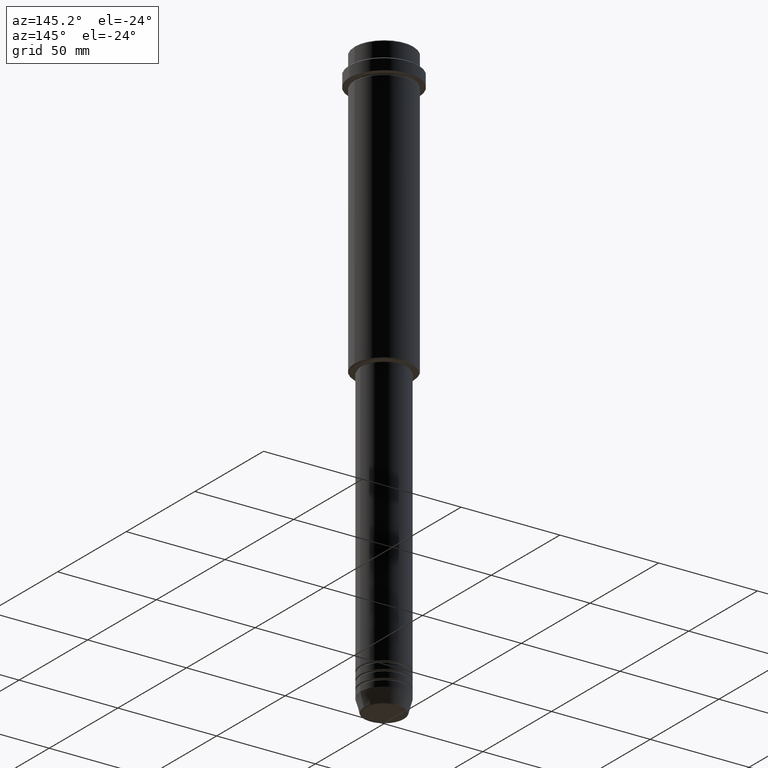
[diagram: clean part render]
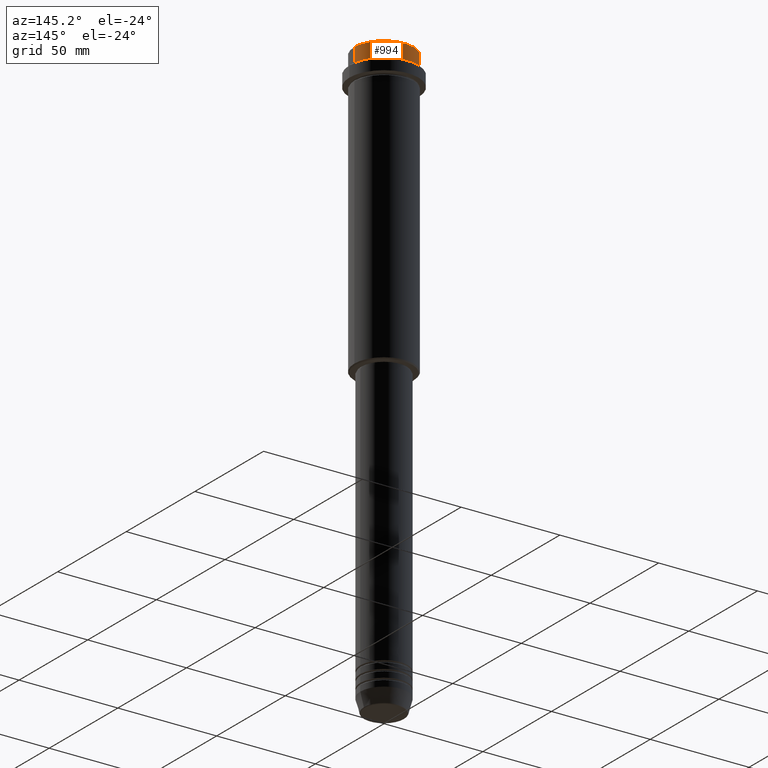
[diagram: same view with one face highlighted and labeled with its STEP entity id]
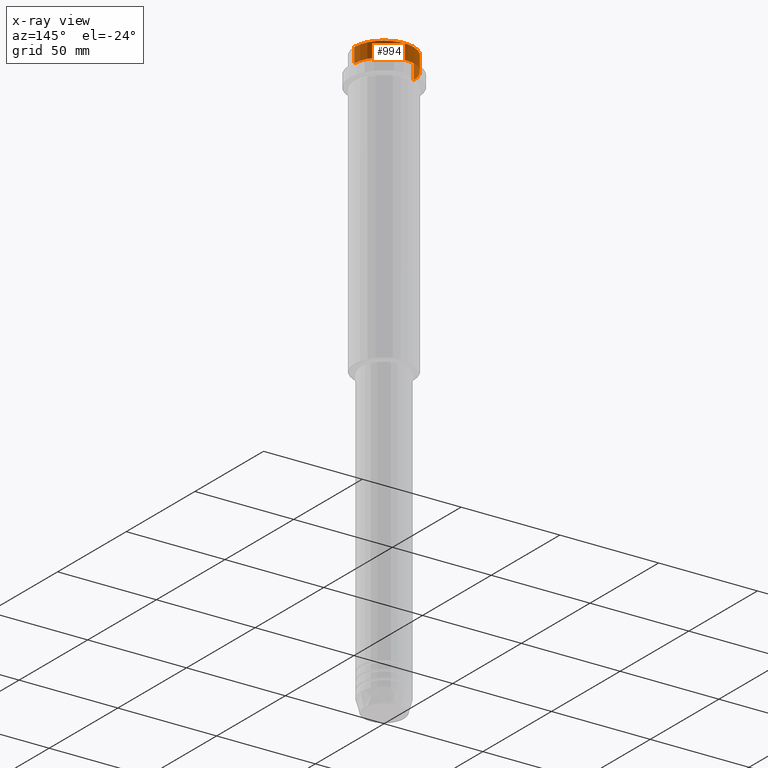
[diagram: x-ray of the same camera — body ghosted, the highlighted face saturated]
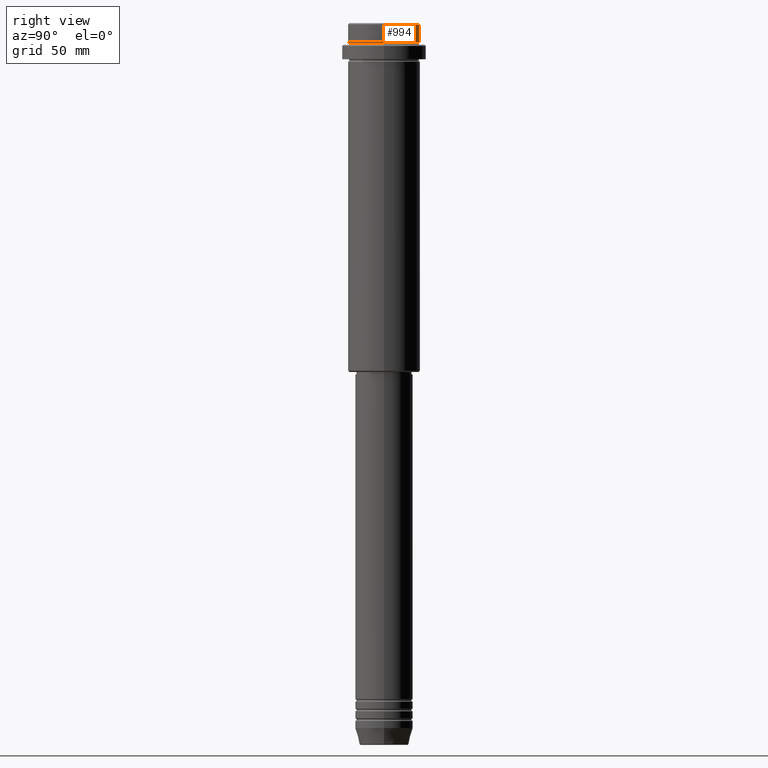
[diagram: same view with one face highlighted and labeled with its STEP entity id]
A machine part, auxiliary view. The second image highlights one B-rep face of the part: STEP entity #994.
The next image is the same camera in x-ray: the body ghosted, the highlighted face saturated — about 0% of this face is hidden behind the body in this view.
A second angle (right view) of the same face is appended — the face is thin or edge-on in the first view.
In plain terms, the highlighted cylindrical surface (edge-blend (fillet) strip) has radius 15 mm, axis along (-0, -0, 1).
Its self-contained STEP definition (entity closure, byte-faithful):
#22 = DIRECTION ( 'NONE',  ( -0.000000000000000000, -0.000000000000000000, 1.000000000000000000 ) ) ;
#49 = VERTEX_POINT ( 'NONE', #160 ) ;
#53 = LINE ( 'NONE', #942, #1100 ) ;
#58 = AXIS2_PLACEMENT_3D ( 'NONE', #398, #1293, #1081 ) ;
#77 = ORIENTED_EDGE ( 'NONE', *, *, #711, .F. ) ;
#88 = CARTESIAN_POINT ( 'NONE',  ( -15.00000000000000000, 1.836970198721029589E-15, -0.5000000000000386358 ) ) ;
#105 = AXIS2_PLACEMENT_3D ( 'NONE', #124, #788, #996 ) ;
#110 = FACE_OUTER_BOUND ( 'NONE', #368, .T. ) ;
#111 = DIRECTION ( 'NONE',  ( 1.000000000000000000, 0.000000000000000000, 0.000000000000000000 ) ) ;
#124 = CARTESIAN_POINT ( 'NONE',  ( 0.000000000000000000, 0.000000000000000000, 0.000000000000000000 ) ) ;
#160 = CARTESIAN_POINT ( 'NONE',  ( 15.00000000000000000, 0.000000000000000000, -7.999999999999998224 ) ) ;
#213 = CARTESIAN_POINT ( 'NONE',  ( 15.00000000000000000, 0.000000000000000000, -0.5000000000000386358 ) ) ;
#217 = CARTESIAN_POINT ( 'NONE',  ( 0.000000000000000000, 0.000000000000000000, -7.999999999999998224 ) ) ;
#229 = EDGE_CURVE ( 'NONE', #1302, #1335, #823, .T. ) ;
#250 = LINE ( 'NONE', #666, #1166 ) ;
#264 = VERTEX_POINT ( 'NONE', #574 ) ;
#285 = ORIENTED_EDGE ( 'NONE', *, *, #229, .T. ) ;
#307 = ORIENTED_EDGE ( 'NONE', *, *, #553, .T. ) ;
#368 = EDGE_LOOP ( 'NONE', ( #481, #307, #285, #77 ) ) ;
#381 = DIRECTION ( 'NONE',  ( -0.000000000000000000, -0.000000000000000000, 1.000000000000000000 ) ) ;
#398 = CARTESIAN_POINT ( 'NONE',  ( 0.000000000000000000, 0.000000000000000000, -0.5000000000000386358 ) ) ;
#481 = ORIENTED_EDGE ( 'NONE', *, *, #541, .T. ) ;
#541 = EDGE_CURVE ( 'NONE', #49, #264, #1300, .T. ) ;
#553 = EDGE_CURVE ( 'NONE', #264, #1302, #250, .T. ) ;
#574 = CARTESIAN_POINT ( 'NONE',  ( -15.00000000000000000, 1.836970198721029589E-15, -7.999999999999998224 ) ) ;
#655 = CYLINDRICAL_SURFACE ( 'NONE', #105, 15.00000000000000000 ) ;
#666 = CARTESIAN_POINT ( 'NONE',  ( -15.00000000000000000, 1.836970198721029589E-15, 0.000000000000000000 ) ) ;
#682 = AXIS2_PLACEMENT_3D ( 'NONE', #217, #22, #111 ) ;
#711 = EDGE_CURVE ( 'NONE', #49, #1335, #53, .T. ) ;
#788 = DIRECTION ( 'NONE',  ( -0.000000000000000000, -0.000000000000000000, 1.000000000000000000 ) ) ;
#823 = CIRCLE ( 'NONE', #58, 15.00000000000000000 ) ;
#942 = CARTESIAN_POINT ( 'NONE',  ( 15.00000000000000000, 0.000000000000000000, 0.000000000000000000 ) ) ;
#994 = ADVANCED_FACE ( 'NONE', ( #110 ), #655, .T. ) ;
#996 = DIRECTION ( 'NONE',  ( 1.000000000000000000, 0.000000000000000000, 0.000000000000000000 ) ) ;
#1081 = DIRECTION ( 'NONE',  ( 1.000000000000000000, 0.000000000000000000, 0.000000000000000000 ) ) ;
#1100 = VECTOR ( 'NONE', #381, 1000.000000000000000 ) ;
#1166 = VECTOR ( 'NONE', #1332, 1000.000000000000000 ) ;
#1293 = DIRECTION ( 'NONE',  ( 0.000000000000000000, 0.000000000000000000, -1.000000000000000000 ) ) ;
#1300 = CIRCLE ( 'NONE', #682, 15.00000000000000000 ) ;
#1302 = VERTEX_POINT ( 'NONE', #88 ) ;
#1332 = DIRECTION ( 'NONE',  ( -0.000000000000000000, -0.000000000000000000, 1.000000000000000000 ) ) ;
#1335 = VERTEX_POINT ( 'NONE', #213 ) ;